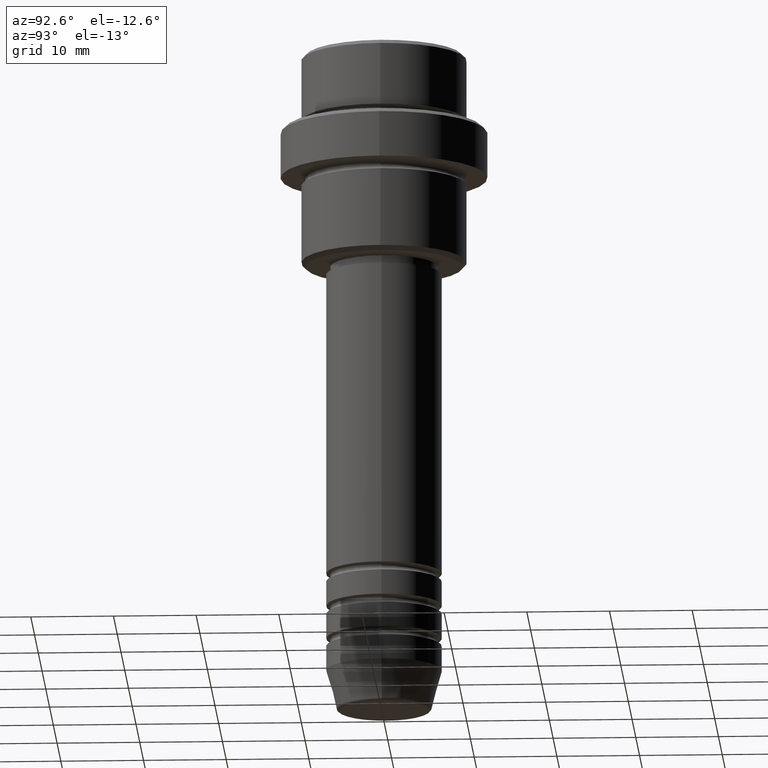
[diagram: clean part render]
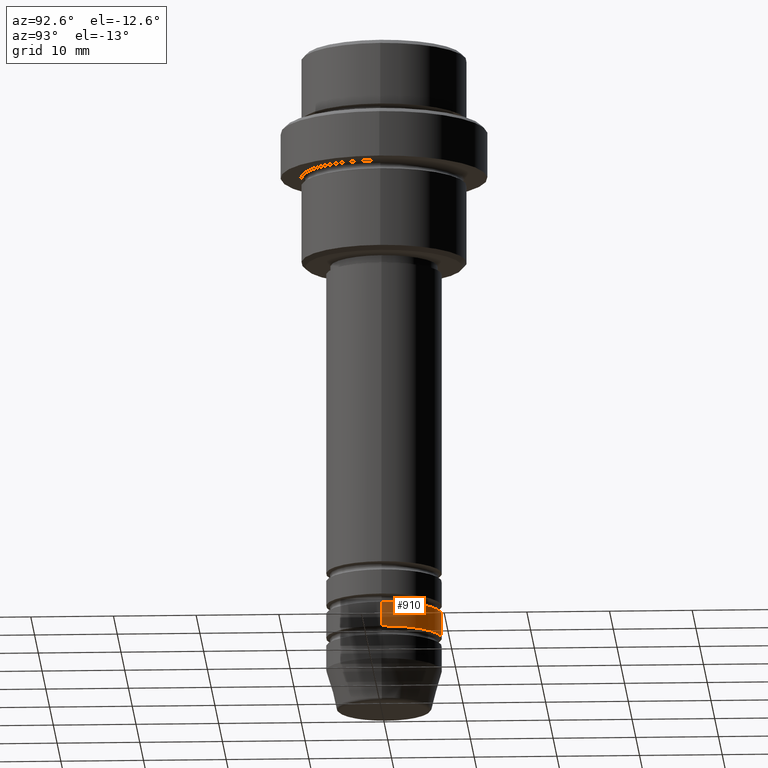
[diagram: same view with one face highlighted and labeled with its STEP entity id]
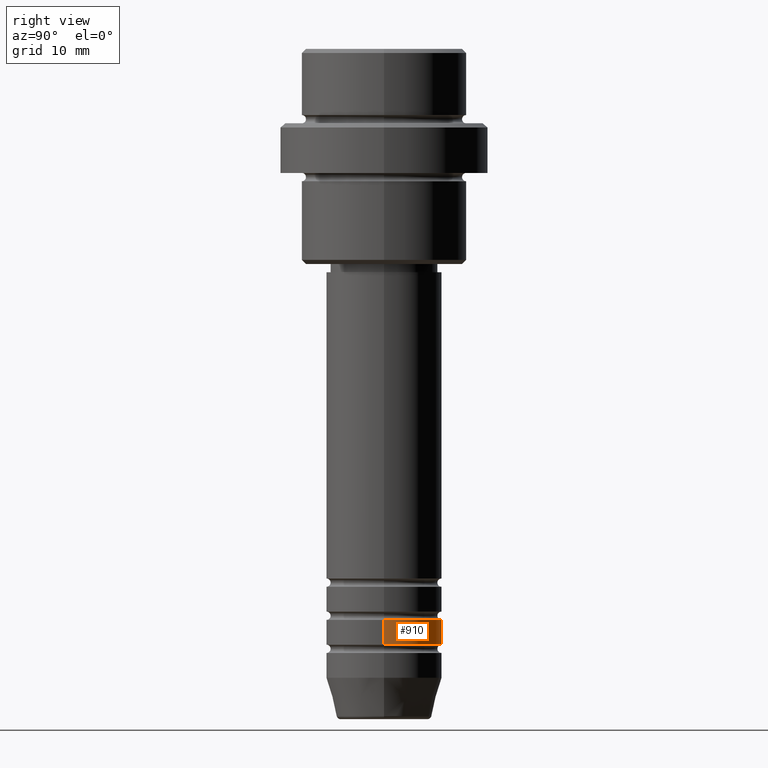
[diagram: same view with one face highlighted and labeled with its STEP entity id]
A machine part, auxiliary view. The second image highlights one B-rep face of the part: STEP entity #910.
A second angle (right view) of the same face is appended — the face is thin or edge-on in the first view.
In plain terms, the highlighted cylindrical surface (partial cylindrical patch) has radius 7 mm, axis along (-0, -0, 1).
Its self-contained STEP definition (entity closure, byte-faithful):
#24 = VECTOR ( 'NONE', #88, 1000.000000000000000 ) ;
#43 = CARTESIAN_POINT ( 'NONE',  ( 7.000000000000000000, 0.000000000000000000, -71.99999999999988631 ) ) ;
#47 = AXIS2_PLACEMENT_3D ( 'NONE', #1091, #542, #660 ) ;
#88 = DIRECTION ( 'NONE',  ( -0.000000000000000000, -0.000000000000000000, 1.000000000000000000 ) ) ;
#107 = DIRECTION ( 'NONE',  ( 1.000000000000000000, 0.000000000000000000, 0.000000000000000000 ) ) ;
#156 = ORIENTED_EDGE ( 'NONE', *, *, #1327, .T. ) ;
#157 = ORIENTED_EDGE ( 'NONE', *, *, #630, .T. ) ;
#189 = VECTOR ( 'NONE', #1050, 1000.000000000000000 ) ;
#265 = CIRCLE ( 'NONE', #424, 7.000000000000000000 ) ;
#268 = ORIENTED_EDGE ( 'NONE', *, *, #1285, .F. ) ;
#319 = CARTESIAN_POINT ( 'NONE',  ( -7.000000000000000000, 8.572527594031473190E-16, -71.99999999999988631 ) ) ;
#340 = DIRECTION ( 'NONE',  ( -0.000000000000000000, -0.000000000000000000, 1.000000000000000000 ) ) ;
#424 = AXIS2_PLACEMENT_3D ( 'NONE', #1096, #1309, #107 ) ;
#501 = LINE ( 'NONE', #849, #24 ) ;
#542 = DIRECTION ( 'NONE',  ( -0.000000000000000000, -0.000000000000000000, 1.000000000000000000 ) ) ;
#611 = CARTESIAN_POINT ( 'NONE',  ( 7.000000000000000000, 0.000000000000000000, 0.000000000000000000 ) ) ;
#630 = EDGE_CURVE ( 'NONE', #861, #1374, #501, .T. ) ;
#657 = EDGE_CURVE ( 'NONE', #917, #1023, #746, .T. ) ;
#660 = DIRECTION ( 'NONE',  ( 1.000000000000000000, 0.000000000000000000, 0.000000000000000000 ) ) ;
#674 = CARTESIAN_POINT ( 'NONE',  ( -7.000000000000000000, 8.572527594031473190E-16, -68.99999999999990052 ) ) ;
#746 = LINE ( 'NONE', #611, #189 ) ;
#769 = FACE_OUTER_BOUND ( 'NONE', #830, .T. ) ;
#830 = EDGE_LOOP ( 'NONE', ( #156, #157, #268, #888 ) ) ;
#849 = CARTESIAN_POINT ( 'NONE',  ( -7.000000000000000000, 8.572527594031473190E-16, 0.000000000000000000 ) ) ;
#861 = VERTEX_POINT ( 'NONE', #319 ) ;
#885 = CYLINDRICAL_SURFACE ( 'NONE', #1060, 7.000000000000000000 ) ;
#888 = ORIENTED_EDGE ( 'NONE', *, *, #657, .F. ) ;
#910 = ADVANCED_FACE ( 'NONE', ( #769 ), #885, .T. ) ;
#917 = VERTEX_POINT ( 'NONE', #43 ) ;
#1023 = VERTEX_POINT ( 'NONE', #1124 ) ;
#1050 = DIRECTION ( 'NONE',  ( -0.000000000000000000, -0.000000000000000000, 1.000000000000000000 ) ) ;
#1060 = AXIS2_PLACEMENT_3D ( 'NONE', #1321, #340, #1348 ) ;
#1087 = CIRCLE ( 'NONE', #47, 7.000000000000000000 ) ;
#1091 = CARTESIAN_POINT ( 'NONE',  ( 0.000000000000000000, 0.000000000000000000, -68.99999999999990052 ) ) ;
#1096 = CARTESIAN_POINT ( 'NONE',  ( 0.000000000000000000, 0.000000000000000000, -71.99999999999988631 ) ) ;
#1124 = CARTESIAN_POINT ( 'NONE',  ( 7.000000000000000000, 0.000000000000000000, -68.99999999999990052 ) ) ;
#1285 = EDGE_CURVE ( 'NONE', #1023, #1374, #1087, .T. ) ;
#1309 = DIRECTION ( 'NONE',  ( -0.000000000000000000, -0.000000000000000000, 1.000000000000000000 ) ) ;
#1321 = CARTESIAN_POINT ( 'NONE',  ( 0.000000000000000000, 0.000000000000000000, 0.000000000000000000 ) ) ;
#1327 = EDGE_CURVE ( 'NONE', #917, #861, #265, .T. ) ;
#1348 = DIRECTION ( 'NONE',  ( 1.000000000000000000, 0.000000000000000000, 0.000000000000000000 ) ) ;
#1374 = VERTEX_POINT ( 'NONE', #674 ) ;